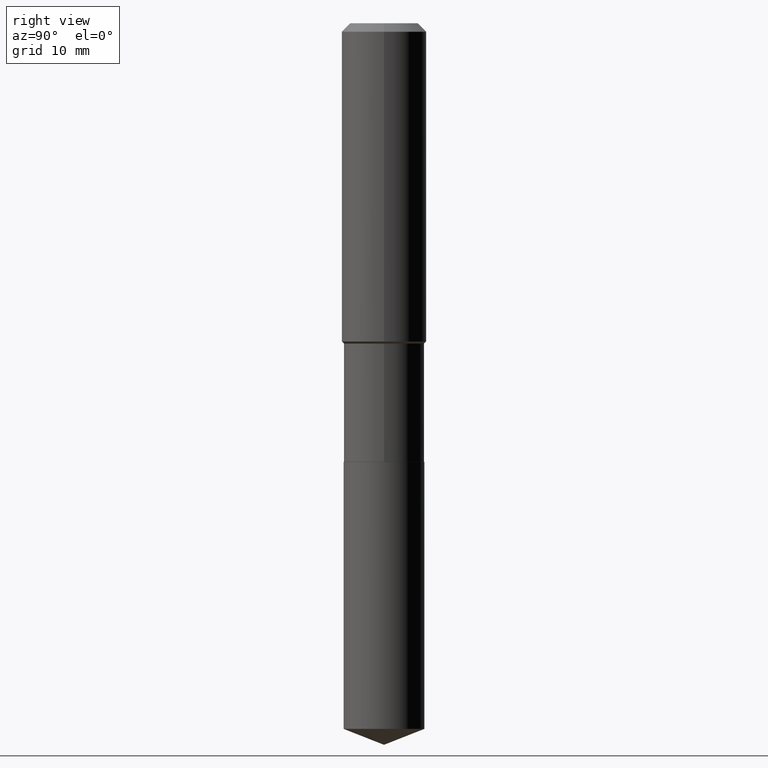
[diagram: clean part render]
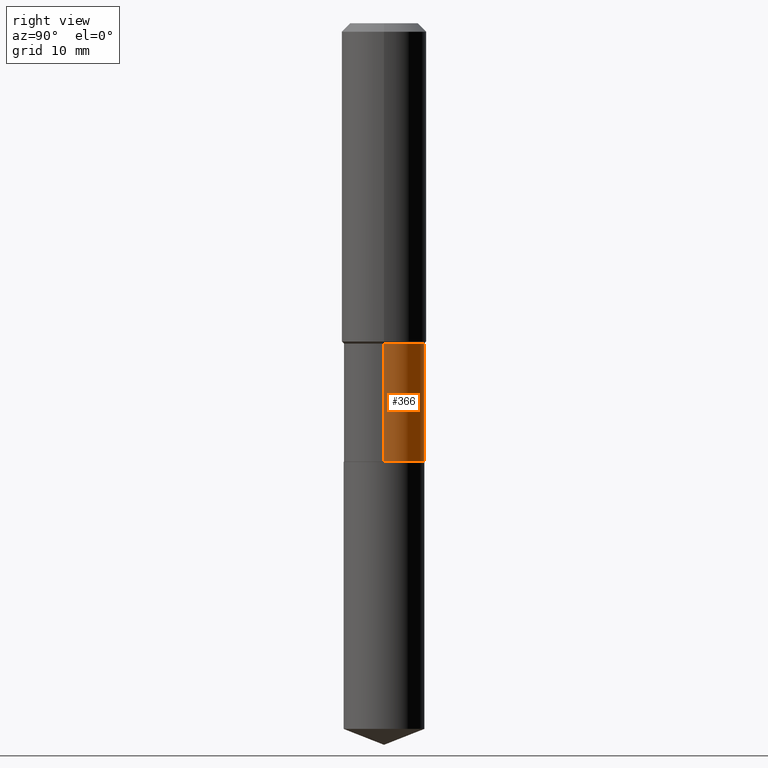
[diagram: same view with one face highlighted and labeled with its STEP entity id]
A machine part, right view. The second image highlights one B-rep face of the part: STEP entity #366.
In plain terms, the highlighted cylindrical surface (partial cylindrical patch) has radius 5.6998 mm, axis along (-0, 0, 1).
Its self-contained STEP definition (entity closure, byte-faithful):
#11 = ORIENTED_EDGE ( 'NONE', *, *, #13, .F. ) ;
#13 = EDGE_CURVE ( 'NONE', #94, #281, #330, .T. ) ;
#23 = DIRECTION ( 'NONE',  ( 1.000000000000000000, -6.982962677686266711E-15, 4.876176775795936353E-29 ) ) ;
#30 = EDGE_CURVE ( 'NONE', #281, #202, #224, .T. ) ;
#74 = CARTESIAN_POINT ( 'NONE',  ( 0.2243999999999999329, -7.792288052030127830E-15, -1.783000000000000140 ) ) ;
#94 = VERTEX_POINT ( 'NONE', #482 ) ;
#97 = CIRCLE ( 'NONE', #197, 0.2244000000000000161 ) ;
#99 = CYLINDRICAL_SURFACE ( 'NONE', #376, 0.2243999999999999606 ) ;
#135 = EDGE_CURVE ( 'NONE', #464, #202, #352, .T. ) ;
#140 = FACE_OUTER_BOUND ( 'NONE', #164, .T. ) ;
#141 = DIRECTION ( 'NONE',  ( -2.445468806185136877E-29, 3.491481338843145188E-15, 1.000000000000000000 ) ) ;
#152 = CARTESIAN_POINT ( 'NONE',  ( 4.360270881428098808E-29, -6.225311227157329429E-15, -1.783000000000000140 ) ) ;
#164 = EDGE_LOOP ( 'NONE', ( #210, #334, #216, #11 ) ) ;
#173 = CARTESIAN_POINT ( 'NONE',  ( 0.000000000000000000, 0.000000000000000000, 0.000000000000000000 ) ) ;
#190 = DIRECTION ( 'NONE',  ( 1.000000000000000000, -6.982962677686269866E-15, 0.000000000000000000 ) ) ;
#197 = AXIS2_PLACEMENT_3D ( 'NONE', #238, #275, #278 ) ;
#202 = VERTEX_POINT ( 'NONE', #315 ) ;
#204 = DIRECTION ( 'NONE',  ( -2.445468806185136877E-29, 3.491481338843145188E-15, 1.000000000000000000 ) ) ;
#210 = ORIENTED_EDGE ( 'NONE', *, *, #222, .T. ) ;
#213 = VECTOR ( 'NONE', #204, 39.37007874015748143 ) ;
#216 = ORIENTED_EDGE ( 'NONE', *, *, #30, .F. ) ;
#222 = EDGE_CURVE ( 'NONE', #94, #464, #97, .T. ) ;
#224 = CIRCLE ( 'NONE', #405, 0.2243999999999999329 ) ;
#228 = DIRECTION ( 'NONE',  ( -2.445468806185136597E-29, 3.491481338843145583E-15, 1.000000000000000000 ) ) ;
#238 = CARTESIAN_POINT ( 'NONE',  ( 5.967922074614207358E-29, -8.520611059312812251E-15, -2.440399999999999903 ) ) ;
#275 = DIRECTION ( 'NONE',  ( -2.445468806185136597E-29, 3.491481338843145583E-15, 1.000000000000000000 ) ) ;
#278 = DIRECTION ( 'NONE',  ( 1.000000000000000000, -6.982962677686266711E-15, 0.000000000000000000 ) ) ;
#281 = VERTEX_POINT ( 'NONE', #74 ) ;
#312 = VECTOR ( 'NONE', #141, 39.37007874015748143 ) ;
#315 = CARTESIAN_POINT ( 'NONE',  ( -0.2243999999999999329, -5.778503244189406500E-15, -1.783000000000000140 ) ) ;
#330 = LINE ( 'NONE', #455, #312 ) ;
#334 = ORIENTED_EDGE ( 'NONE', *, *, #135, .T. ) ;
#343 = CARTESIAN_POINT ( 'NONE',  ( -0.2244000000000000161, -5.778503244189405711E-15, -2.440399999999999903 ) ) ;
#352 = LINE ( 'NONE', #471, #213 ) ;
#366 = ADVANCED_FACE ( 'NONE', ( #140 ), #99, .T. ) ;
#376 = AXIS2_PLACEMENT_3D ( 'NONE', #173, #398, #23 ) ;
#398 = DIRECTION ( 'NONE',  ( -2.445468806185136597E-29, 3.491481338843145583E-15, 1.000000000000000000 ) ) ;
#405 = AXIS2_PLACEMENT_3D ( 'NONE', #152, #228, #190 ) ;
#455 = CARTESIAN_POINT ( 'NONE',  ( 0.2243999999999999606, -1.566976824872798007E-15, 1.094214068488607909E-29 ) ) ;
#464 = VERTEX_POINT ( 'NONE', #343 ) ;
#471 = CARTESIAN_POINT ( 'NONE',  ( -0.2243999999999999606, 1.594457899045664537E-15, -1.103809034253200744E-29 ) ) ;
#482 = CARTESIAN_POINT ( 'NONE',  ( 0.2244000000000000161, -1.008758788418561065E-14, -2.440399999999999903 ) ) ;